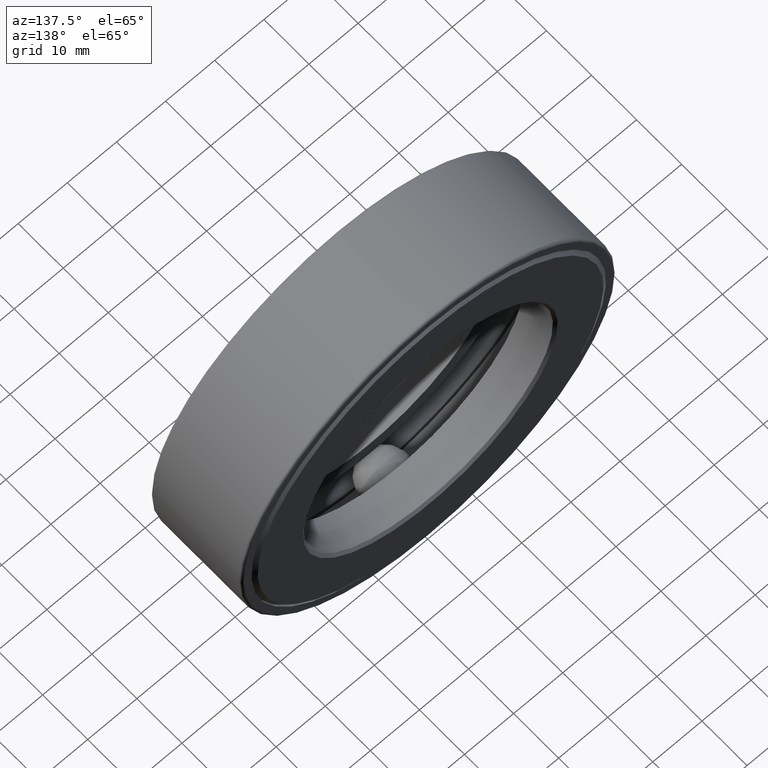
[diagram: clean part render]
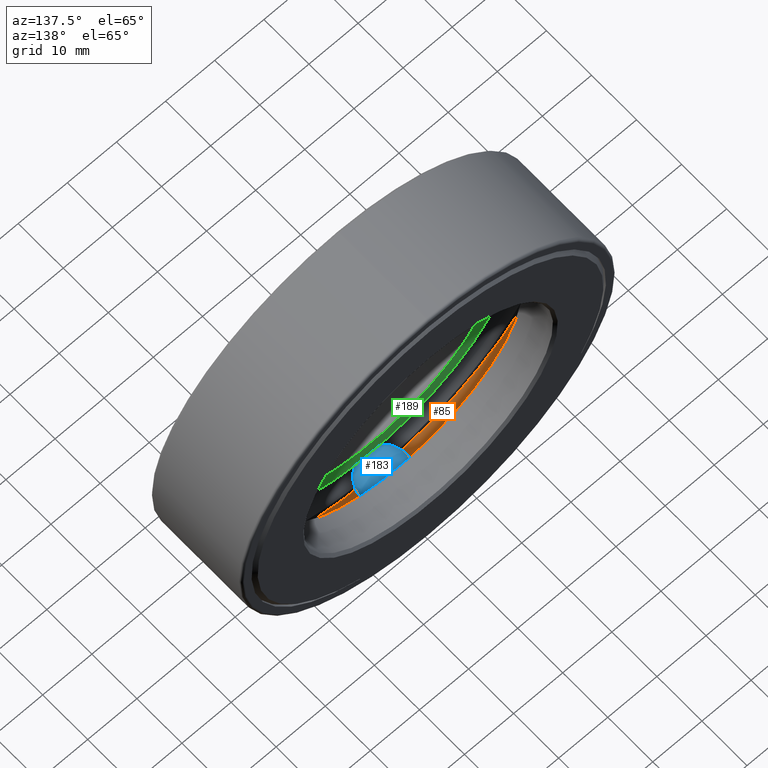
[diagram: same view with three faces highlighted in distinct colors, each labeled with its STEP entity id]
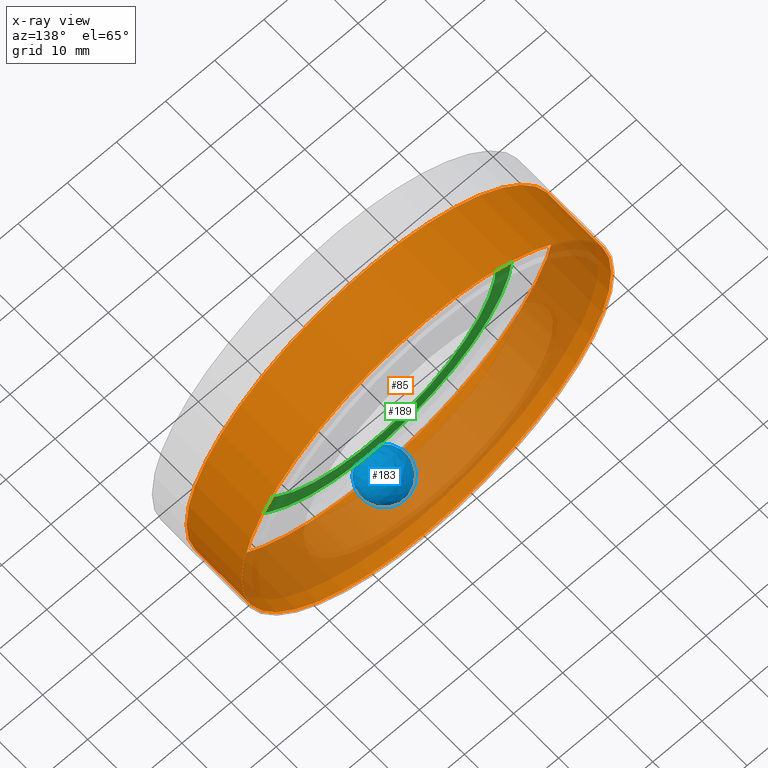
[diagram: x-ray of the same camera — body ghosted, the three highlighted faces saturated]
A machine part, auxiliary view with three faces highlighted in distinct colors.
The next image is the same camera in x-ray (body ghosted, the three faces saturated) — at least one of them is partly hidden behind the body in this view.
Their STEP definitions:

[orange] entity #85 — the highlighted cylindrical surface (bore or boss wall) has radius 37.592 mm, axis along (-0, 1, -0).
#8 = EDGE_LOOP ( 'NONE', ( #469 ) ) ;
#85 = ADVANCED_FACE ( 'NONE', ( #114, #192 ), #475, .F. ) ;
#113 = CIRCLE ( 'NONE', #438, 1.480000000000000000 ) ;
#114 = FACE_OUTER_BOUND ( 'NONE', #257, .T. ) ;
#118 = DIRECTION ( 'NONE',  ( 0.0000000000000000000, 0.0000000000000000000, 1.000000000000000000 ) ) ;
#133 = VERTEX_POINT ( 'NONE', #588 ) ;
#137 = ORIENTED_EDGE ( 'NONE', *, *, #346, .F. ) ;
#139 = DIRECTION ( 'NONE',  ( 0.0000000000000000000, 0.0000000000000000000, 1.000000000000000000 ) ) ;
#169 = EDGE_CURVE ( 'NONE', #395, #395, #113, .T. ) ;
#192 = FACE_OUTER_BOUND ( 'NONE', #8, .T. ) ;
#216 = CIRCLE ( 'NONE', #357, 1.480000000000000000 ) ;
#238 = AXIS2_PLACEMENT_3D ( 'NONE', #260, #365, #362 ) ;
#257 = EDGE_LOOP ( 'NONE', ( #137 ) ) ;
#260 = CARTESIAN_POINT ( 'NONE',  ( 0.0000000000000000000, 0.0000000000000000000, 0.0000000000000000000 ) ) ;
#346 = EDGE_CURVE ( 'NONE', #133, #133, #216, .T. ) ;
#357 = AXIS2_PLACEMENT_3D ( 'NONE', #402, #597, #118 ) ;
#362 = DIRECTION ( 'NONE',  ( 0.0000000000000000000, 0.0000000000000000000, 1.000000000000000000 ) ) ;
#365 = DIRECTION ( 'NONE',  ( -0.0000000000000000000, 1.000000000000000000, -0.0000000000000000000 ) ) ;
#370 = DIRECTION ( 'NONE',  ( -0.0000000000000000000, 1.000000000000000000, -0.0000000000000000000 ) ) ;
#372 = CARTESIAN_POINT ( 'NONE',  ( 0.0000000000000000000, 0.7774999999999998600, 1.480000000000000000 ) ) ;
#377 = CARTESIAN_POINT ( 'NONE',  ( 0.0000000000000000000, 0.7774999999999998600, 0.0000000000000000000 ) ) ;
#395 = VERTEX_POINT ( 'NONE', #372 ) ;
#402 = CARTESIAN_POINT ( 'NONE',  ( 0.0000000000000000000, 0.2937499999999998400, 0.0000000000000000000 ) ) ;
#438 = AXIS2_PLACEMENT_3D ( 'NONE', #377, #370, #139 ) ;
#469 = ORIENTED_EDGE ( 'NONE', *, *, #169, .T. ) ;
#475 = CYLINDRICAL_SURFACE ( 'NONE', #238, 1.480000000000000000 ) ;
#588 = CARTESIAN_POINT ( 'NONE',  ( 0.0000000000000000000, 0.2937499999999998400, 1.480000000000000000 ) ) ;
#597 = DIRECTION ( 'NONE',  ( -0.0000000000000000000, 1.000000000000000000, -0.0000000000000000000 ) ) ;

[blue] entity #183 — the highlighted spherical surface has radius 4.7625 mm.
#53 = DIRECTION ( 'NONE',  ( 1.000000000000000000, 0.0000000000000000000, -1.047444401652939500E-014 ) ) ;
#181 = DIRECTION ( 'NONE',  ( 1.047444401652939500E-014, 0.0000000000000000000, 1.000000000000000000 ) ) ;
#183 = ADVANCED_FACE ( 'NONE', ( ), #272, .T. ) ;
#272 = SPHERICAL_SURFACE ( 'NONE', #331, 0.1874999999999999400 ) ;
#331 = AXIS2_PLACEMENT_3D ( 'NONE', #381, #53, #181 ) ;
#381 = CARTESIAN_POINT ( 'NONE',  ( -1.344394889521548400E-014, 0.4062499999999997800, -1.283499999999999900 ) ) ;

[green] entity #189 — the highlighted planar face has unit normal (0, -1, 0).
#48 = AXIS2_PLACEMENT_3D ( 'NONE', #572, #232, #576 ) ;
#72 = DIRECTION ( 'NONE',  ( -0.0000000000000000000, 1.000000000000000000, -0.0000000000000000000 ) ) ;
#77 = EDGE_LOOP ( 'NONE', ( #509 ) ) ;
#84 = CARTESIAN_POINT ( 'NONE',  ( 0.0000000000000000000, 0.2937499999999999600, 1.133499999999999700 ) ) ;
#110 = CARTESIAN_POINT ( 'NONE',  ( 0.0000000000000000000, 0.2937499999999999600, 0.0000000000000000000 ) ) ;
#184 = VERTEX_POINT ( 'NONE', #84 ) ;
#189 = ADVANCED_FACE ( 'NONE', ( #498, #603 ), #430, .F. ) ;
#198 = AXIS2_PLACEMENT_3D ( 'NONE', #110, #72, #562 ) ;
#213 = EDGE_CURVE ( 'NONE', #184, #184, #602, .T. ) ;
#232 = DIRECTION ( 'NONE',  ( 0.0000000000000000000, -1.000000000000000000, 0.0000000000000000000 ) ) ;
#237 = CIRCLE ( 'NONE', #375, 1.000000000000000000 ) ;
#300 = EDGE_CURVE ( 'NONE', #429, #429, #237, .T. ) ;
#347 = CARTESIAN_POINT ( 'NONE',  ( 0.0000000000000000000, 0.2937500000000001200, 1.000000000000000000 ) ) ;
#375 = AXIS2_PLACEMENT_3D ( 'NONE', #393, #586, #401 ) ;
#393 = CARTESIAN_POINT ( 'NONE',  ( 0.0000000000000000000, 0.2937500000000001200, 0.0000000000000000000 ) ) ;
#401 = DIRECTION ( 'NONE',  ( 0.0000000000000000000, 0.0000000000000000000, 1.000000000000000000 ) ) ;
#429 = VERTEX_POINT ( 'NONE', #347 ) ;
#430 = PLANE ( 'NONE',  #48 ) ;
#447 = EDGE_LOOP ( 'NONE', ( #569 ) ) ;
#498 = FACE_BOUND ( 'NONE', #77, .T. ) ;
#509 = ORIENTED_EDGE ( 'NONE', *, *, #300, .F. ) ;
#562 = DIRECTION ( 'NONE',  ( 0.0000000000000000000, 0.0000000000000000000, 1.000000000000000000 ) ) ;
#569 = ORIENTED_EDGE ( 'NONE', *, *, #213, .T. ) ;
#572 = CARTESIAN_POINT ( 'NONE',  ( -3.756930468814991700E-016, 0.2937500000000000700, 0.0000000000000000000 ) ) ;
#576 = DIRECTION ( 'NONE',  ( 0.0000000000000000000, -0.0000000000000000000, -1.000000000000000000 ) ) ;
#586 = DIRECTION ( 'NONE',  ( -0.0000000000000000000, 1.000000000000000000, -0.0000000000000000000 ) ) ;
#602 = CIRCLE ( 'NONE', #198, 1.133499999999999700 ) ;
#603 = FACE_OUTER_BOUND ( 'NONE', #447, .T. ) ;